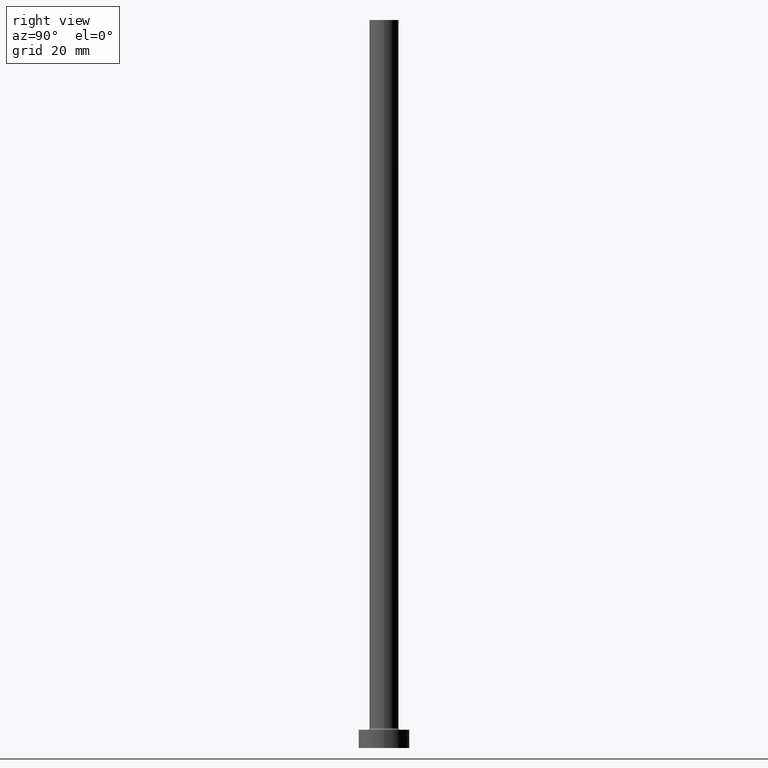
[diagram: clean part render]
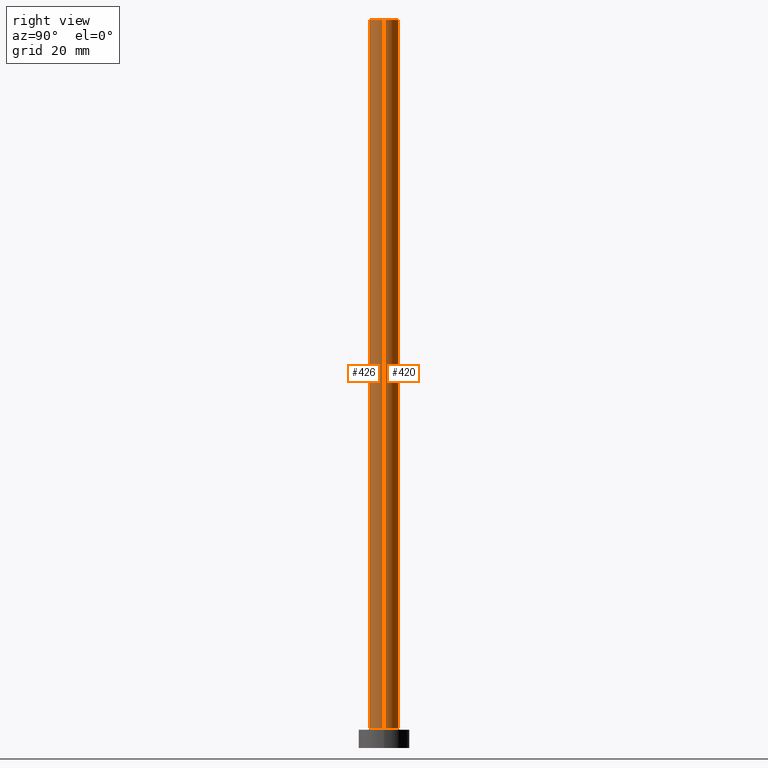
[diagram: same view with one multi-face feature highlighted, each face labeled with its STEP entity id]
A machine part, right view. The highlighted faces form ONE feature: a constant-radius fillet chain: 2 tangent blend faces with common blend radius 4 mm. The faces share edges in the B-rep.
Their STEP definitions:
[1] entity #420 (Cylinder):
#30 = VERTEX_POINT ( 'NONE', #63 ) ;
#36 = AXIS2_PLACEMENT_3D ( 'NONE', #85, #313, #152 ) ;
#49 = CARTESIAN_POINT ( 'NONE',  ( 0.000000000000000000, 0.000000000000000000, 200.0000000000000000 ) ) ;
#63 = CARTESIAN_POINT ( 'NONE',  ( -4.000000000000000000, 0.000000000000000000, 200.0000000000000000 ) ) ;
#66 = CYLINDRICAL_SURFACE ( 'NONE', #36, 4.000000000000000000 ) ;
#80 = EDGE_CURVE ( 'NONE', #329, #279, #282, .T. ) ;
#85 = CARTESIAN_POINT ( 'NONE',  ( 0.000000000000000000, 0.000000000000000000, 200.0000000000000000 ) ) ;
#93 = CARTESIAN_POINT ( 'NONE',  ( 4.000000000000000000, 4.898587196589412829E-16, 200.0000000000000000 ) ) ;
#100 = EDGE_CURVE ( 'NONE', #30, #412, #316, .T. ) ;
#102 = ORIENTED_EDGE ( 'NONE', *, *, #100, .F. ) ;
#110 = EDGE_CURVE ( 'NONE', #279, #412, #428, .T. ) ;
#141 = ORIENTED_EDGE ( 'NONE', *, *, #187, .F. ) ;
#146 = DIRECTION ( 'NONE',  ( -0.000000000000000000, -0.000000000000000000, -1.000000000000000000 ) ) ;
#152 = DIRECTION ( 'NONE',  ( -1.000000000000000000, 0.000000000000000000, 0.000000000000000000 ) ) ;
#159 = ORIENTED_EDGE ( 'NONE', *, *, #80, .T. ) ;
#177 = DIRECTION ( 'NONE',  ( 1.000000000000000000, 0.000000000000000000, 0.000000000000000000 ) ) ;
#187 = EDGE_CURVE ( 'NONE', #329, #30, #227, .T. ) ;
#188 = DIRECTION ( 'NONE',  ( 1.000000000000000000, 0.000000000000000000, 0.000000000000000000 ) ) ;
#196 = CARTESIAN_POINT ( 'NONE',  ( 4.000000000000000000, 4.898587196589412829E-16, 200.0000000000000000 ) ) ;
#209 = ORIENTED_EDGE ( 'NONE', *, *, #110, .T. ) ;
#227 = CIRCLE ( 'NONE', #332, 4.000000000000000000 ) ;
#259 = CARTESIAN_POINT ( 'NONE',  ( 0.000000000000000000, 0.000000000000000000, 5.500000000000005329 ) ) ;
#276 = EDGE_LOOP ( 'NONE', ( #141, #159, #209, #102 ) ) ;
#279 = VERTEX_POINT ( 'NONE', #429 ) ;
#280 = CARTESIAN_POINT ( 'NONE',  ( -4.000000000000000000, 0.000000000000000000, 5.500000000000005329 ) ) ;
#282 = LINE ( 'NONE', #196, #441 ) ;
#284 = VECTOR ( 'NONE', #146, 1000.000000000000000 ) ;
#313 = DIRECTION ( 'NONE',  ( -0.000000000000000000, -0.000000000000000000, -1.000000000000000000 ) ) ;
#316 = LINE ( 'NONE', #358, #284 ) ;
#329 = VERTEX_POINT ( 'NONE', #93 ) ;
#332 = AXIS2_PLACEMENT_3D ( 'NONE', #49, #371, #188 ) ;
#341 = DIRECTION ( 'NONE',  ( -0.000000000000000000, -0.000000000000000000, -1.000000000000000000 ) ) ;
#348 = AXIS2_PLACEMENT_3D ( 'NONE', #259, #362, #177 ) ;
#358 = CARTESIAN_POINT ( 'NONE',  ( -4.000000000000000000, 0.000000000000000000, 200.0000000000000000 ) ) ;
#362 = DIRECTION ( 'NONE',  ( 0.000000000000000000, 0.000000000000000000, 1.000000000000000000 ) ) ;
#371 = DIRECTION ( 'NONE',  ( 0.000000000000000000, 0.000000000000000000, 1.000000000000000000 ) ) ;
#412 = VERTEX_POINT ( 'NONE', #280 ) ;
#420 = ADVANCED_FACE ( 'NONE', ( #450 ), #66, .T. ) ;
#428 = CIRCLE ( 'NONE', #348, 4.000000000000000000 ) ;
#429 = CARTESIAN_POINT ( 'NONE',  ( 4.000000000000000000, 4.898587196589412829E-16, 5.500000000000005329 ) ) ;
#441 = VECTOR ( 'NONE', #341, 1000.000000000000000 ) ;
#450 = FACE_OUTER_BOUND ( 'NONE', #276, .T. ) ;
[2] entity #426 (Cylinder):
#26 = ORIENTED_EDGE ( 'NONE', *, *, #80, .F. ) ;
#27 = CARTESIAN_POINT ( 'NONE',  ( 0.000000000000000000, 0.000000000000000000, 200.0000000000000000 ) ) ;
#30 = VERTEX_POINT ( 'NONE', #63 ) ;
#59 = DIRECTION ( 'NONE',  ( -1.000000000000000000, 0.000000000000000000, 0.000000000000000000 ) ) ;
#63 = CARTESIAN_POINT ( 'NONE',  ( -4.000000000000000000, 0.000000000000000000, 200.0000000000000000 ) ) ;
#70 = EDGE_CURVE ( 'NONE', #412, #279, #267, .T. ) ;
#80 = EDGE_CURVE ( 'NONE', #329, #279, #282, .T. ) ;
#93 = CARTESIAN_POINT ( 'NONE',  ( 4.000000000000000000, 4.898587196589412829E-16, 200.0000000000000000 ) ) ;
#96 = AXIS2_PLACEMENT_3D ( 'NONE', #127, #154, #59 ) ;
#100 = EDGE_CURVE ( 'NONE', #30, #412, #316, .T. ) ;
#107 = ORIENTED_EDGE ( 'NONE', *, *, #100, .T. ) ;
#121 = DIRECTION ( 'NONE',  ( 0.000000000000000000, 0.000000000000000000, 1.000000000000000000 ) ) ;
#122 = CYLINDRICAL_SURFACE ( 'NONE', #96, 4.000000000000000000 ) ;
#127 = CARTESIAN_POINT ( 'NONE',  ( 0.000000000000000000, 0.000000000000000000, 200.0000000000000000 ) ) ;
#130 = EDGE_LOOP ( 'NONE', ( #26, #431, #107, #445 ) ) ;
#137 = DIRECTION ( 'NONE',  ( 1.000000000000000000, 0.000000000000000000, 0.000000000000000000 ) ) ;
#146 = DIRECTION ( 'NONE',  ( -0.000000000000000000, -0.000000000000000000, -1.000000000000000000 ) ) ;
#154 = DIRECTION ( 'NONE',  ( -0.000000000000000000, -0.000000000000000000, -1.000000000000000000 ) ) ;
#161 = DIRECTION ( 'NONE',  ( 0.000000000000000000, 0.000000000000000000, 1.000000000000000000 ) ) ;
#196 = CARTESIAN_POINT ( 'NONE',  ( 4.000000000000000000, 4.898587196589412829E-16, 200.0000000000000000 ) ) ;
#205 = AXIS2_PLACEMENT_3D ( 'NONE', #27, #121, #137 ) ;
#267 = CIRCLE ( 'NONE', #382, 4.000000000000000000 ) ;
#279 = VERTEX_POINT ( 'NONE', #429 ) ;
#280 = CARTESIAN_POINT ( 'NONE',  ( -4.000000000000000000, 0.000000000000000000, 5.500000000000005329 ) ) ;
#282 = LINE ( 'NONE', #196, #441 ) ;
#284 = VECTOR ( 'NONE', #146, 1000.000000000000000 ) ;
#309 = CARTESIAN_POINT ( 'NONE',  ( 0.000000000000000000, 0.000000000000000000, 5.500000000000005329 ) ) ;
#316 = LINE ( 'NONE', #358, #284 ) ;
#317 = CIRCLE ( 'NONE', #205, 4.000000000000000000 ) ;
#329 = VERTEX_POINT ( 'NONE', #93 ) ;
#341 = DIRECTION ( 'NONE',  ( -0.000000000000000000, -0.000000000000000000, -1.000000000000000000 ) ) ;
#358 = CARTESIAN_POINT ( 'NONE',  ( -4.000000000000000000, 0.000000000000000000, 200.0000000000000000 ) ) ;
#372 = EDGE_CURVE ( 'NONE', #30, #329, #317, .T. ) ;
#374 = FACE_OUTER_BOUND ( 'NONE', #130, .T. ) ;
#382 = AXIS2_PLACEMENT_3D ( 'NONE', #309, #161, #453 ) ;
#412 = VERTEX_POINT ( 'NONE', #280 ) ;
#426 = ADVANCED_FACE ( 'NONE', ( #374 ), #122, .T. ) ;
#429 = CARTESIAN_POINT ( 'NONE',  ( 4.000000000000000000, 4.898587196589412829E-16, 5.500000000000005329 ) ) ;
#431 = ORIENTED_EDGE ( 'NONE', *, *, #372, .F. ) ;
#441 = VECTOR ( 'NONE', #341, 1000.000000000000000 ) ;
#445 = ORIENTED_EDGE ( 'NONE', *, *, #70, .T. ) ;
#453 = DIRECTION ( 'NONE',  ( 1.000000000000000000, 0.000000000000000000, 0.000000000000000000 ) ) ;